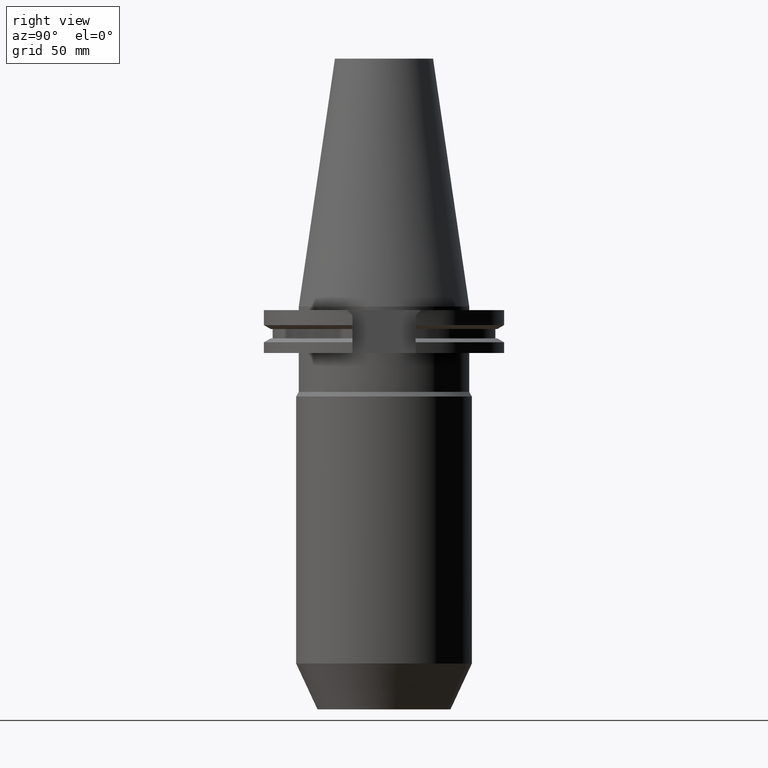
[diagram: clean part render]
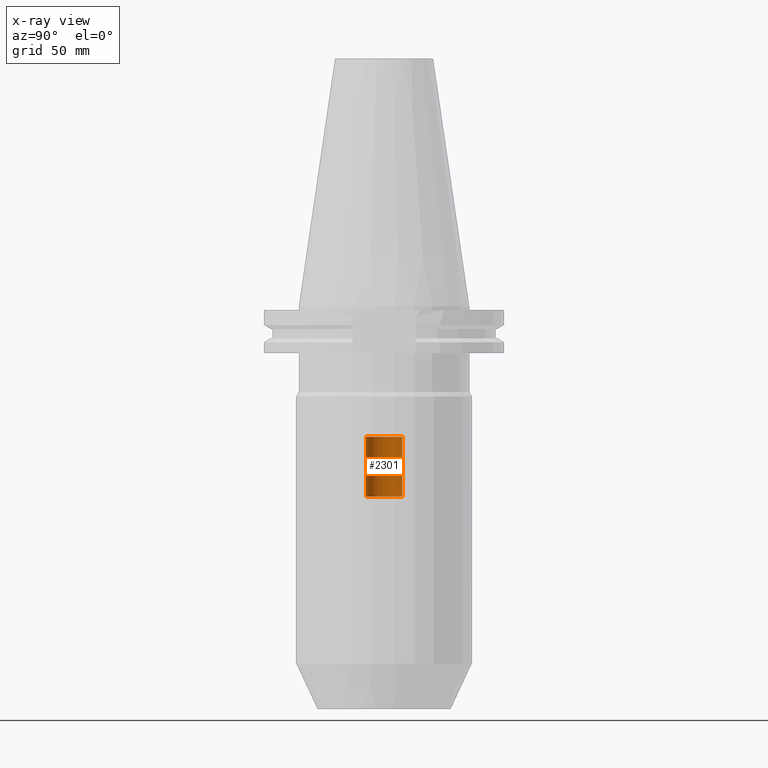
[diagram: x-ray — body ghosted, one internal face saturated and labeled with its STEP entity id]
A machine part, right view, then the same camera in x-ray: the body is ghosted and one INTERNAL B-rep face — a face not visible from any outside direction — is saturated and labeled: STEP entity #2301.
In plain terms, the highlighted cylindrical surface (edge-blend (fillet) strip) has radius 7.5 mm, axis along (0, 0, 1).
Its self-contained STEP definition (entity closure, byte-faithful):
#1060=CARTESIAN_POINT('',(0.E0,0.E0,-7.79E1));
#1061=DIRECTION('',(0.E0,0.E0,-1.E0));
#1062=DIRECTION('',(0.E0,-1.E0,0.E0));
#1063=AXIS2_PLACEMENT_3D('',#1060,#1061,#1062);
#1076=DIRECTION('',(0.E0,0.E0,1.E0));
#1077=VECTOR('',#1076,2.45E1);
#1078=CARTESIAN_POINT('',(0.E0,-7.5E0,-7.79E1));
#1079=LINE('',#1078,#1077);
#1083=DIRECTION('',(0.E0,0.E0,1.E0));
#1084=VECTOR('',#1083,2.45E1);
#1085=CARTESIAN_POINT('',(0.E0,7.5E0,-7.79E1));
#1086=LINE('',#1085,#1084);
#1114=CARTESIAN_POINT('',(0.E0,0.E0,-5.34E1));
#1115=DIRECTION('',(0.E0,0.E0,1.E0));
#1116=DIRECTION('',(0.E0,1.E0,0.E0));
#1117=AXIS2_PLACEMENT_3D('',#1114,#1115,#1116);
#1354=CARTESIAN_POINT('',(0.E0,-7.5E0,-7.79E1));
#1355=CARTESIAN_POINT('',(0.E0,7.5E0,-7.79E1));
#1356=VERTEX_POINT('',#1354);
#1357=VERTEX_POINT('',#1355);
#1358=CARTESIAN_POINT('',(0.E0,7.5E0,-5.34E1));
#1359=VERTEX_POINT('',#1358);
#1360=CARTESIAN_POINT('',(0.E0,-7.5E0,-5.34E1));
#1361=VERTEX_POINT('',#1360);
#2287=CARTESIAN_POINT('',(0.E0,0.E0,-1.78435E2));
#2288=DIRECTION('',(0.E0,0.E0,1.E0));
#2289=DIRECTION('',(0.E0,1.E0,0.E0));
#2290=AXIS2_PLACEMENT_3D('',#2287,#2288,#2289);
#2291=CYLINDRICAL_SURFACE('',#2290,7.5E0);
#2293=ORIENTED_EDGE('',*,*,#2292,.F.);
#2294=ORIENTED_EDGE('',*,*,#2280,.F.);
#2296=ORIENTED_EDGE('',*,*,#2295,.T.);
#2298=ORIENTED_EDGE('',*,*,#2297,.F.);
#2299=EDGE_LOOP('',(#2293,#2294,#2296,#2298));
#2300=FACE_OUTER_BOUND('',#2299,.F.);
#1064=CIRCLE('',#1063,7.5E0);
#1118=CIRCLE('',#1117,7.5E0);
#2280=EDGE_CURVE('',#1356,#1357,#1064,.T.);
#2292=EDGE_CURVE('',#1357,#1359,#1086,.T.);
#2295=EDGE_CURVE('',#1356,#1361,#1079,.T.);
#2297=EDGE_CURVE('',#1359,#1361,#1118,.T.);
#2301=ADVANCED_FACE('',(#2300),#2291,.F.);